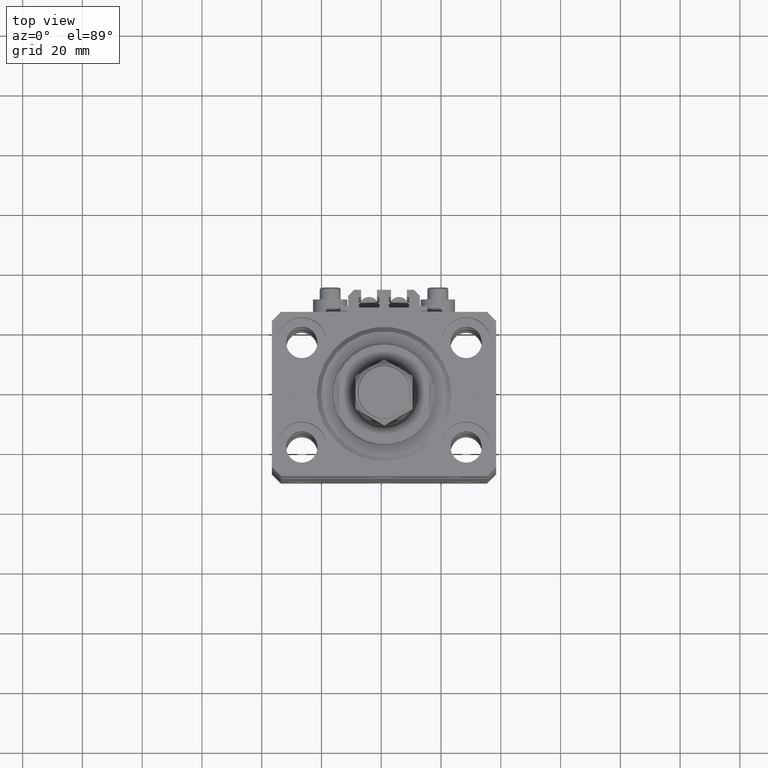
[diagram: clean part render]
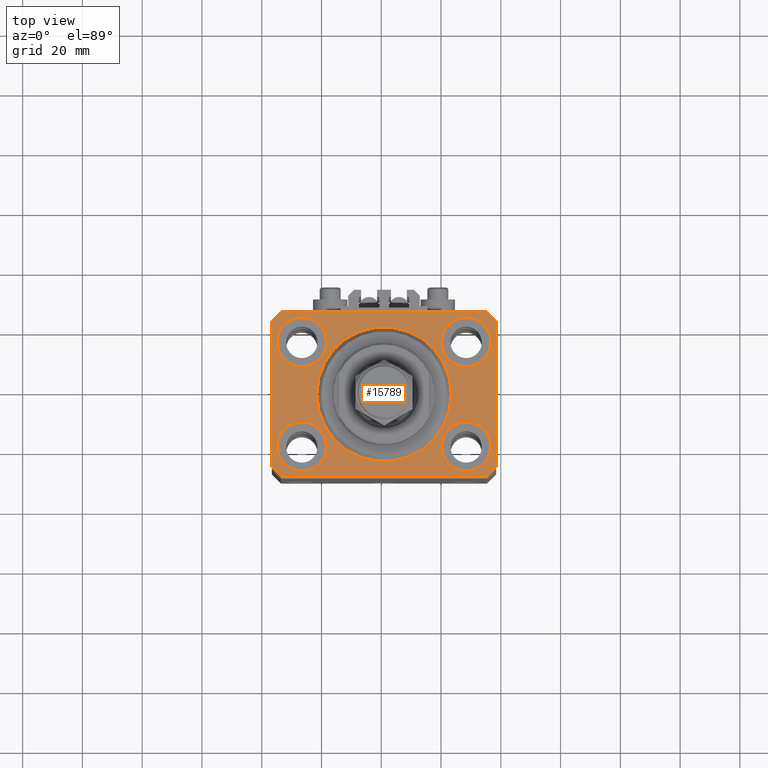
[diagram: same view with one face highlighted and labeled with its STEP entity id]
A machine part, top view. The second image highlights one B-rep face of the part: STEP entity #15789.
In plain terms, the highlighted planar face has unit normal (0, 0, 1).
Its self-contained STEP definition (entity closure, byte-faithful):
#572 = CIRCLE ( 'NONE', #16702, 8.250000000000000000 ) ;
#866 = DIRECTION ( 'NONE',  ( 1.000000000000000000, 0.000000000000000000, 0.000000000000000000 ) ) ;
#1036 = CARTESIAN_POINT ( 'NONE',  ( -37.49999999999999289, -24.50000000000000000, 0.000000000000000000 ) ) ;
#1316 = VERTEX_POINT ( 'NONE', #20494 ) ;
#1704 = AXIS2_PLACEMENT_3D ( 'NONE', #24628, #13279, #16083 ) ;
#1754 = VERTEX_POINT ( 'NONE', #48412 ) ;
#2017 = CIRCLE ( 'NONE', #3626, 8.250000000000000000 ) ;
#2185 = FACE_BOUND ( 'NONE', #45134, .T. ) ;
#2835 = DIRECTION ( 'NONE',  ( 1.000000000000000000, 0.000000000000000000, 0.000000000000000000 ) ) ;
#2943 = ORIENTED_EDGE ( 'NONE', *, *, #24146, .F. ) ;
#2959 = ORIENTED_EDGE ( 'NONE', *, *, #48175, .T. ) ;
#3440 = ORIENTED_EDGE ( 'NONE', *, *, #40301, .T. ) ;
#3626 = AXIS2_PLACEMENT_3D ( 'NONE', #40954, #27221, #31008 ) ;
#3980 = DIRECTION ( 'NONE',  ( 0.000000000000000000, 0.000000000000000000, 1.000000000000000000 ) ) ;
#4387 = LINE ( 'NONE', #26821, #25800 ) ;
#4406 = DIRECTION ( 'NONE',  ( 1.000000000000000000, 0.000000000000000000, 0.000000000000000000 ) ) ;
#4578 = ORIENTED_EDGE ( 'NONE', *, *, #8667, .F. ) ;
#4720 = VECTOR ( 'NONE', #11250, 1000.000000000000114 ) ;
#4987 = FACE_BOUND ( 'NONE', #5748, .T. ) ;
#5424 = ORIENTED_EDGE ( 'NONE', *, *, #44881, .T. ) ;
#5635 = DIRECTION ( 'NONE',  ( -0.7071067811865471286, -0.7071067811865479058, 0.000000000000000000 ) ) ;
#5640 = CARTESIAN_POINT ( 'NONE',  ( 37.50000000000051870, 24.49999999999995381, 0.000000000000000000 ) ) ;
#5722 = FACE_OUTER_BOUND ( 'NONE', #17849, .T. ) ;
#5748 = EDGE_LOOP ( 'NONE', ( #32453, #24725 ) ) ;
#5897 = ORIENTED_EDGE ( 'NONE', *, *, #28699, .T. ) ;
#5945 = DIRECTION ( 'NONE',  ( 0.000000000000000000, -1.000000000000000000, 0.000000000000000000 ) ) ;
#6069 = VERTEX_POINT ( 'NONE', #48622 ) ;
#6249 = CARTESIAN_POINT ( 'NONE',  ( 35.74999999999999289, 17.50000000000001066, 0.000000000000000000 ) ) ;
#6509 = VERTEX_POINT ( 'NONE', #48364 ) ;
#6561 = EDGE_CURVE ( 'NONE', #1754, #10596, #7061, .T. ) ;
#6656 = VECTOR ( 'NONE', #48372, 1000.000000000000000 ) ;
#7061 = CIRCLE ( 'NONE', #19103, 8.250000000000000000 ) ;
#7065 = VERTEX_POINT ( 'NONE', #12951 ) ;
#7124 = CIRCLE ( 'NONE', #30433, 8.250000000000000000 ) ;
#7475 = DIRECTION ( 'NONE',  ( 1.000000000000000000, 0.000000000000000000, 0.000000000000000000 ) ) ;
#7908 = DIRECTION ( 'NONE',  ( 1.000000000000000000, 0.000000000000000000, 0.000000000000000000 ) ) ;
#8013 = DIRECTION ( 'NONE',  ( -1.000000000000000000, 0.000000000000000000, 0.000000000000000000 ) ) ;
#8282 = ORIENTED_EDGE ( 'NONE', *, *, #36686, .F. ) ;
#8667 = EDGE_CURVE ( 'NONE', #10596, #1754, #7124, .T. ) ;
#9026 = EDGE_CURVE ( 'NONE', #31526, #13398, #45800, .T. ) ;
#9210 = CARTESIAN_POINT ( 'NONE',  ( 19.25000000000000000, 17.50000000000001066, 0.000000000000000000 ) ) ;
#9259 = CARTESIAN_POINT ( 'NONE',  ( -19.25000000000000355, 17.50000000000000000, 0.000000000000000000 ) ) ;
#9341 = VECTOR ( 'NONE', #35545, 1000.000000000000000 ) ;
#9747 = CIRCLE ( 'NONE', #1704, 8.250000000000000000 ) ;
#9994 = CARTESIAN_POINT ( 'NONE',  ( 0.000000000000000000, 0.000000000000000000, 0.000000000000000000 ) ) ;
#10333 = EDGE_CURVE ( 'NONE', #14986, #47979, #572, .T. ) ;
#10457 = AXIS2_PLACEMENT_3D ( 'NONE', #9994, #36490, #20359 ) ;
#10596 = VERTEX_POINT ( 'NONE', #29050 ) ;
#11250 = DIRECTION ( 'NONE',  ( -0.7071067811865356934, 0.7071067811865594521, 0.000000000000000000 ) ) ;
#12687 = LINE ( 'NONE', #44387, #44052 ) ;
#12951 = CARTESIAN_POINT ( 'NONE',  ( -34.49999999999999289, 27.50000000000000000, 0.000000000000000000 ) ) ;
#13278 = CARTESIAN_POINT ( 'NONE',  ( 37.49999999999999289, -24.50000000000000000, 0.000000000000000000 ) ) ;
#13279 = DIRECTION ( 'NONE',  ( 0.000000000000000000, 0.000000000000000000, 1.000000000000000000 ) ) ;
#13398 = VERTEX_POINT ( 'NONE', #33561 ) ;
#13506 = CARTESIAN_POINT ( 'NONE',  ( 0.000000000000000000, 0.000000000000000000, 0.000000000000000000 ) ) ;
#13796 = AXIS2_PLACEMENT_3D ( 'NONE', #14671, #34098, #2835 ) ;
#14671 = CARTESIAN_POINT ( 'NONE',  ( 27.49999999999999645, 17.50000000000001066, 0.000000000000000000 ) ) ;
#14986 = VERTEX_POINT ( 'NONE', #22874 ) ;
#15084 = LINE ( 'NONE', #22654, #29079 ) ;
#15186 = AXIS2_PLACEMENT_3D ( 'NONE', #19316, #18338, #7475 ) ;
#15570 = DIRECTION ( 'NONE',  ( 1.000000000000000000, 0.000000000000000000, 0.000000000000000000 ) ) ;
#15789 = ADVANCED_FACE ( 'NONE', ( #28902, #2185, #28159, #24383, #4987, #5722 ), #40278, .T. ) ;
#15819 = VERTEX_POINT ( 'NONE', #25125 ) ;
#16083 = DIRECTION ( 'NONE',  ( 1.000000000000000000, 0.000000000000000000, 0.000000000000000000 ) ) ;
#16425 = DIRECTION ( 'NONE',  ( 0.000000000000000000, 0.000000000000000000, 1.000000000000000000 ) ) ;
#16702 = AXIS2_PLACEMENT_3D ( 'NONE', #23542, #35157, #7908 ) ;
#17849 = EDGE_LOOP ( 'NONE', ( #31911, #30974, #48358, #3440, #2959, #5424, #5897, #23939 ) ) ;
#18273 = VECTOR ( 'NONE', #5635, 1000.000000000000000 ) ;
#18338 = DIRECTION ( 'NONE',  ( 0.000000000000000000, 0.000000000000000000, 1.000000000000000000 ) ) ;
#18362 = ORIENTED_EDGE ( 'NONE', *, *, #10333, .F. ) ;
#18430 = CIRCLE ( 'NONE', #15186, 8.250000000000000000 ) ;
#18737 = EDGE_CURVE ( 'NONE', #45195, #44634, #35570, .T. ) ;
#19103 = AXIS2_PLACEMENT_3D ( 'NONE', #40813, #16425, #28939 ) ;
#19316 = CARTESIAN_POINT ( 'NONE',  ( 27.50000000000000355, -17.50000000000000000, 0.000000000000000000 ) ) ;
#20149 = EDGE_CURVE ( 'NONE', #1316, #23474, #41811, .T. ) ;
#20359 = DIRECTION ( 'NONE',  ( 1.000000000000000000, 0.000000000000000000, -0.000000000000000000 ) ) ;
#20394 = CARTESIAN_POINT ( 'NONE',  ( -37.49999999999999289, -24.50000000000000000, 0.000000000000000000 ) ) ;
#20494 = CARTESIAN_POINT ( 'NONE',  ( -22.50000000000000355, 2.755455298081545172E-15, 0.000000000000000000 ) ) ;
#20519 = CARTESIAN_POINT ( 'NONE',  ( -34.49999999999999289, 27.50000000000000000, 0.000000000000000000 ) ) ;
#21316 = VERTEX_POINT ( 'NONE', #13278 ) ;
#21831 = CARTESIAN_POINT ( 'NONE',  ( 22.50000000000000355, 0.000000000000000000, 0.000000000000000000 ) ) ;
#22654 = CARTESIAN_POINT ( 'NONE',  ( 34.50000000000056843, 27.50000000000000000, 0.000000000000000000 ) ) ;
#22874 = CARTESIAN_POINT ( 'NONE',  ( 19.25000000000000000, -17.50000000000000000, 0.000000000000000000 ) ) ;
#23474 = VERTEX_POINT ( 'NONE', #21831 ) ;
#23495 = DIRECTION ( 'NONE',  ( 1.000000000000000000, 0.000000000000000000, 0.000000000000000000 ) ) ;
#23542 = CARTESIAN_POINT ( 'NONE',  ( 27.50000000000000355, -17.50000000000000000, 0.000000000000000000 ) ) ;
#23932 = EDGE_LOOP ( 'NONE', ( #2943, #8282 ) ) ;
#23939 = ORIENTED_EDGE ( 'NONE', *, *, #9026, .T. ) ;
#24146 = EDGE_CURVE ( 'NONE', #49269, #6509, #9747, .T. ) ;
#24383 = FACE_BOUND ( 'NONE', #23932, .T. ) ;
#24628 = CARTESIAN_POINT ( 'NONE',  ( -27.50000000000000355, 17.50000000000000000, 0.000000000000000000 ) ) ;
#24642 = ORIENTED_EDGE ( 'NONE', *, *, #6561, .F. ) ;
#24725 = ORIENTED_EDGE ( 'NONE', *, *, #20149, .F. ) ;
#25125 = CARTESIAN_POINT ( 'NONE',  ( -34.49999999999998579, -27.49999999999999645, 0.000000000000000000 ) ) ;
#25800 = VECTOR ( 'NONE', #866, 1000.000000000000000 ) ;
#26821 = CARTESIAN_POINT ( 'NONE',  ( -34.49999999999998579, -27.49999999999999645, 0.000000000000000000 ) ) ;
#27221 = DIRECTION ( 'NONE',  ( 0.000000000000000000, 0.000000000000000000, 1.000000000000000000 ) ) ;
#27274 = CARTESIAN_POINT ( 'NONE',  ( 27.49999999999999645, 17.50000000000001066, 0.000000000000000000 ) ) ;
#27615 = EDGE_LOOP ( 'NONE', ( #36637, #31688 ) ) ;
#27771 = DIRECTION ( 'NONE',  ( 0.000000000000000000, 0.000000000000000000, 1.000000000000000000 ) ) ;
#28159 = FACE_BOUND ( 'NONE', #27615, .T. ) ;
#28699 = EDGE_CURVE ( 'NONE', #21316, #31526, #45581, .T. ) ;
#28871 = DIRECTION ( 'NONE',  ( 0.000000000000000000, 0.000000000000000000, 1.000000000000000000 ) ) ;
#28902 = FACE_BOUND ( 'NONE', #42474, .T. ) ;
#28939 = DIRECTION ( 'NONE',  ( 1.000000000000000000, 0.000000000000000000, 0.000000000000000000 ) ) ;
#29050 = CARTESIAN_POINT ( 'NONE',  ( -19.25000000000000355, -17.50000000000000000, 0.000000000000000000 ) ) ;
#29079 = VECTOR ( 'NONE', #8013, 1000.000000000000000 ) ;
#30433 = AXIS2_PLACEMENT_3D ( 'NONE', #38525, #3980, #15570 ) ;
#30974 = ORIENTED_EDGE ( 'NONE', *, *, #40739, .T. ) ;
#31008 = DIRECTION ( 'NONE',  ( 1.000000000000000000, 0.000000000000000000, 0.000000000000000000 ) ) ;
#31227 = EDGE_CURVE ( 'NONE', #6069, #48922, #48558, .T. ) ;
#31359 = AXIS2_PLACEMENT_3D ( 'NONE', #13506, #28871, #40498 ) ;
#31499 = EDGE_CURVE ( 'NONE', #23474, #1316, #34847, .T. ) ;
#31526 = VERTEX_POINT ( 'NONE', #5640 ) ;
#31688 = ORIENTED_EDGE ( 'NONE', *, *, #48311, .F. ) ;
#31911 = ORIENTED_EDGE ( 'NONE', *, *, #49182, .T. ) ;
#32375 = LINE ( 'NONE', #20519, #18273 ) ;
#32423 = CARTESIAN_POINT ( 'NONE',  ( 35.75000000000000711, -17.50000000000000000, 0.000000000000000000 ) ) ;
#32453 = ORIENTED_EDGE ( 'NONE', *, *, #31499, .F. ) ;
#33561 = CARTESIAN_POINT ( 'NONE',  ( 34.50000000000056843, 27.50000000000000000, 0.000000000000000000 ) ) ;
#33670 = ORIENTED_EDGE ( 'NONE', *, *, #45483, .F. ) ;
#34098 = DIRECTION ( 'NONE',  ( 0.000000000000000000, 0.000000000000000000, 1.000000000000000000 ) ) ;
#34847 = CIRCLE ( 'NONE', #47724, 22.50000000000000355 ) ;
#35157 = DIRECTION ( 'NONE',  ( 0.000000000000000000, 0.000000000000000000, 1.000000000000000000 ) ) ;
#35545 = DIRECTION ( 'NONE',  ( 0.7071067811865483499, -0.7071067811865466846, 0.000000000000000000 ) ) ;
#35555 = CIRCLE ( 'NONE', #13796, 8.249999999999992895 ) ;
#35570 = CIRCLE ( 'NONE', #47613, 8.249999999999992895 ) ;
#36490 = DIRECTION ( 'NONE',  ( 0.000000000000000000, 0.000000000000000000, 1.000000000000000000 ) ) ;
#36637 = ORIENTED_EDGE ( 'NONE', *, *, #18737, .F. ) ;
#36686 = EDGE_CURVE ( 'NONE', #6509, #49269, #2017, .T. ) ;
#37417 = CARTESIAN_POINT ( 'NONE',  ( 34.49999999999999289, -27.49999999999999645, 0.000000000000000000 ) ) ;
#38525 = CARTESIAN_POINT ( 'NONE',  ( -27.50000000000000355, -17.50000000000000000, 0.000000000000000000 ) ) ;
#38958 = DIRECTION ( 'NONE',  ( 0.000000000000000000, 0.000000000000000000, 1.000000000000000000 ) ) ;
#40278 = PLANE ( 'NONE',  #10457 ) ;
#40301 = EDGE_CURVE ( 'NONE', #48922, #15819, #43356, .T. ) ;
#40498 = DIRECTION ( 'NONE',  ( 1.000000000000000000, 0.000000000000000000, 0.000000000000000000 ) ) ;
#40739 = EDGE_CURVE ( 'NONE', #7065, #6069, #32375, .T. ) ;
#40813 = CARTESIAN_POINT ( 'NONE',  ( -27.50000000000000355, -17.50000000000000000, 0.000000000000000000 ) ) ;
#40954 = CARTESIAN_POINT ( 'NONE',  ( -27.50000000000000355, 17.50000000000000000, 0.000000000000000000 ) ) ;
#41811 = CIRCLE ( 'NONE', #31359, 22.50000000000000355 ) ;
#42474 = EDGE_LOOP ( 'NONE', ( #4578, #24642 ) ) ;
#42744 = CARTESIAN_POINT ( 'NONE',  ( 0.000000000000000000, 0.000000000000000000, 0.000000000000000000 ) ) ;
#43111 = VERTEX_POINT ( 'NONE', #37417 ) ;
#43356 = LINE ( 'NONE', #20394, #9341 ) ;
#44052 = VECTOR ( 'NONE', #45129, 1000.000000000000114 ) ;
#44387 = CARTESIAN_POINT ( 'NONE',  ( 34.49999999999999289, -27.49999999999999645, 0.000000000000000000 ) ) ;
#44634 = VERTEX_POINT ( 'NONE', #9210 ) ;
#44774 = CARTESIAN_POINT ( 'NONE',  ( -37.49999999999999289, 24.50000000000000000, 0.000000000000000000 ) ) ;
#44840 = CARTESIAN_POINT ( 'NONE',  ( 37.49999999999999289, -24.50000000000000000, 0.000000000000000000 ) ) ;
#44881 = EDGE_CURVE ( 'NONE', #43111, #21316, #12687, .T. ) ;
#45129 = DIRECTION ( 'NONE',  ( 0.7071067811865474617, 0.7071067811865474617, 0.000000000000000000 ) ) ;
#45134 = EDGE_LOOP ( 'NONE', ( #33670, #18362 ) ) ;
#45195 = VERTEX_POINT ( 'NONE', #6249 ) ;
#45483 = EDGE_CURVE ( 'NONE', #47979, #14986, #18430, .T. ) ;
#45581 = LINE ( 'NONE', #44840, #6656 ) ;
#45800 = LINE ( 'NONE', #49328, #4720 ) ;
#47613 = AXIS2_PLACEMENT_3D ( 'NONE', #27274, #27771, #23495 ) ;
#47692 = VECTOR ( 'NONE', #5945, 1000.000000000000000 ) ;
#47724 = AXIS2_PLACEMENT_3D ( 'NONE', #42744, #38958, #4406 ) ;
#47979 = VERTEX_POINT ( 'NONE', #32423 ) ;
#48175 = EDGE_CURVE ( 'NONE', #15819, #43111, #4387, .T. ) ;
#48311 = EDGE_CURVE ( 'NONE', #44634, #45195, #35555, .T. ) ;
#48358 = ORIENTED_EDGE ( 'NONE', *, *, #31227, .T. ) ;
#48364 = CARTESIAN_POINT ( 'NONE',  ( -35.75000000000000711, 17.50000000000000000, 0.000000000000000000 ) ) ;
#48372 = DIRECTION ( 'NONE',  ( 1.076236605503979380E-14, 1.000000000000000000, 0.000000000000000000 ) ) ;
#48412 = CARTESIAN_POINT ( 'NONE',  ( -35.75000000000000711, -17.50000000000000000, 0.000000000000000000 ) ) ;
#48558 = LINE ( 'NONE', #44774, #47692 ) ;
#48622 = CARTESIAN_POINT ( 'NONE',  ( -37.49999999999999289, 24.50000000000000000, 0.000000000000000000 ) ) ;
#48922 = VERTEX_POINT ( 'NONE', #1036 ) ;
#49182 = EDGE_CURVE ( 'NONE', #13398, #7065, #15084, .T. ) ;
#49269 = VERTEX_POINT ( 'NONE', #9259 ) ;
#49328 = CARTESIAN_POINT ( 'NONE',  ( 37.50000000000051870, 24.49999999999995381, 0.000000000000000000 ) ) ;